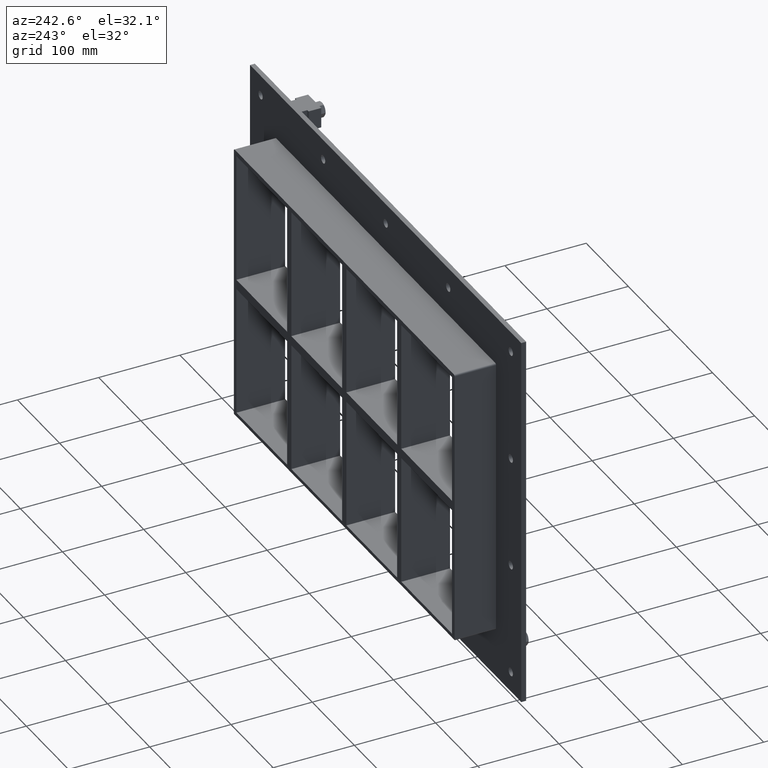
[diagram: clean part render]
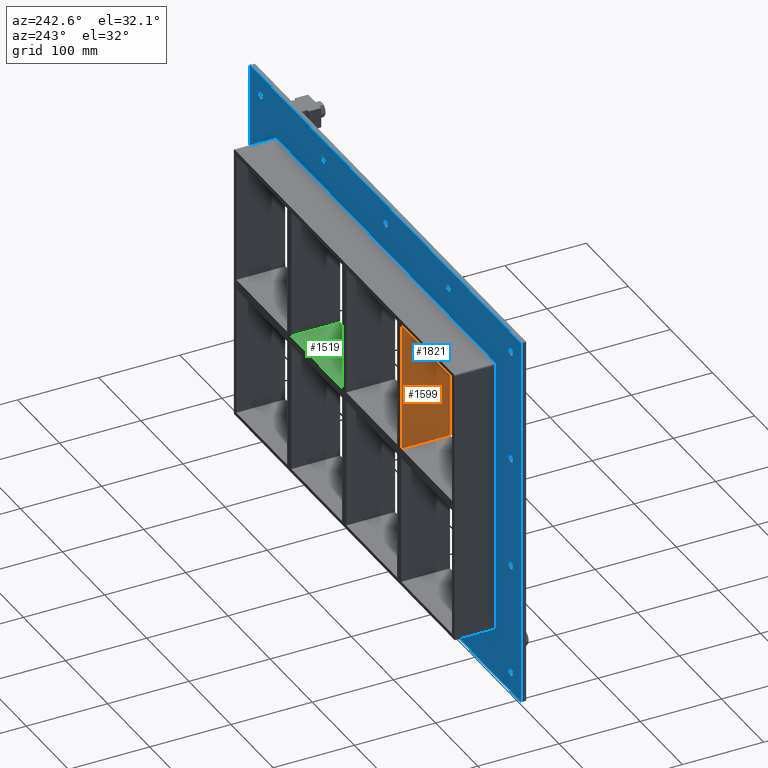
[diagram: same view with three faces highlighted in distinct colors, each labeled with its STEP entity id]
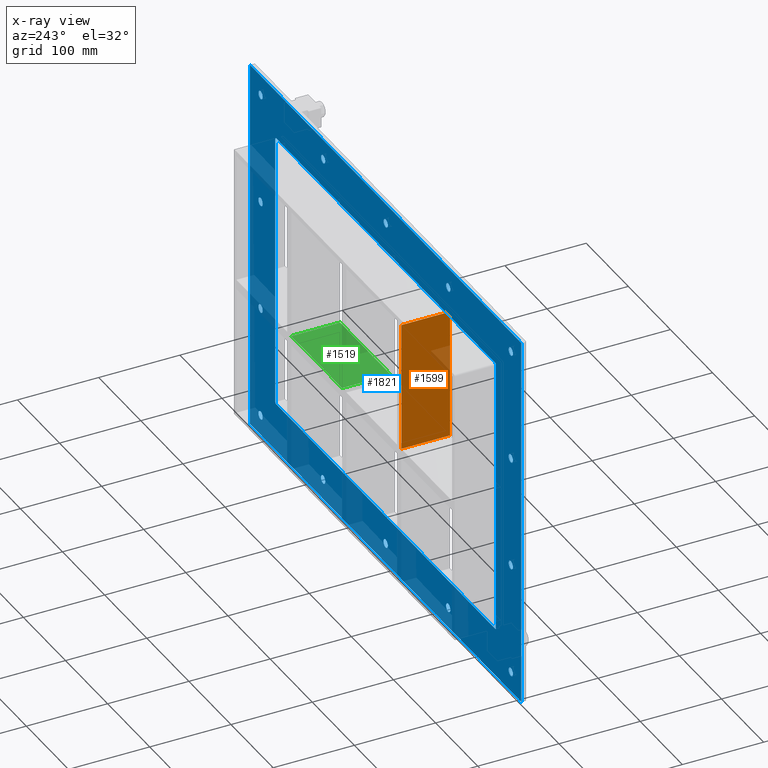
[diagram: x-ray of the same camera — body ghosted, the three highlighted faces saturated]
A machine part, auxiliary view with three faces highlighted in distinct colors.
The next image is the same camera in x-ray (body ghosted, the three faces saturated) — at least one of them is partly hidden behind the body in this view.
Their STEP definitions:

[orange] entity #1599 — the highlighted planar face has unit normal (-1, 0, 0).
#1062=CARTESIAN_POINT('',(-135.50000000000031,-3.0,165.5));
#1063=VERTEX_POINT('',#1062);
#1070=CARTESIAN_POINT('',(-135.50000000000031,-3.0,6.000000000000227));
#1071=VERTEX_POINT('',#1070);
#1072=CARTESIAN_POINT('',(-135.50000000000034,-3.0,6.000000000000227));
#1073=DIRECTION('',(0.0,0.0,1.0));
#1074=VECTOR('',#1073,159.4999999999998);
#1075=LINE('',#1072,#1074);
#1076=EDGE_CURVE('',#1071,#1063,#1075,.T.);
#1302=CARTESIAN_POINT('',(-135.50000000000031,57.0,6.000000000000227));
#1303=VERTEX_POINT('',#1302);
#1310=CARTESIAN_POINT('',(-135.50000000000031,57.0,165.5));
#1311=VERTEX_POINT('',#1310);
#1312=CARTESIAN_POINT('',(-135.50000000000034,57.0,6.000000000000227));
#1313=DIRECTION('',(0.0,0.0,1.0));
#1314=VECTOR('',#1313,159.4999999999998);
#1315=LINE('',#1312,#1314);
#1316=EDGE_CURVE('',#1303,#1311,#1315,.T.);
#1525=CARTESIAN_POINT('',(-135.50000000000034,57.0,6.000000000000227));
#1526=DIRECTION('',(0.0,-1.0,0.0));
#1527=VECTOR('',#1526,60.0);
#1528=LINE('',#1525,#1527);
#1529=EDGE_CURVE('',#1303,#1071,#1528,.T.);
#1583=CARTESIAN_POINT('',(-135.50000000000034,-3.0,-165.50000000000009));
#1584=DIRECTION('',(-1.0,0.0,0.0));
#1585=DIRECTION('',(0.0,0.0,1.0));
#1586=AXIS2_PLACEMENT_3D('',#1583,#1584,#1585);
#1587=PLANE('',#1586);
#1588=ORIENTED_EDGE('',*,*,#1529,.T.);
#1589=ORIENTED_EDGE('',*,*,#1076,.T.);
#1590=CARTESIAN_POINT('',(-135.50000000000028,57.000000000000007,165.50000000000006));
#1591=DIRECTION('',(0.0,-1.0,0.0));
#1592=VECTOR('',#1591,60.000000000000007);
#1593=LINE('',#1590,#1592);
#1594=EDGE_CURVE('',#1311,#1063,#1593,.T.);
#1595=ORIENTED_EDGE('',*,*,#1594,.F.);
#1596=ORIENTED_EDGE('',*,*,#1316,.F.);
#1597=EDGE_LOOP('',(#1588,#1589,#1595,#1596));
#1598=FACE_OUTER_BOUND('',#1597,.T.);
#1599=ADVANCED_FACE('',(#1598),#1587,.T.);

[blue] entity #1821 — the highlighted planar face has unit normal (0, 1, 0).
#73=CARTESIAN_POINT('',(-302.00000000000011,5.999999999999943,-206.5));
#74=VERTEX_POINT('',#73);
#75=CARTESIAN_POINT('',(-297.00000000000011,5.999999999999943,-206.5));
#76=DIRECTION('',(0.0,-1.0,0.0));
#77=DIRECTION('',(1.0,0.0,0.0));
#78=AXIS2_PLACEMENT_3D('',#75,#76,#77);
#79=CIRCLE('',#78,5.0);
#80=EDGE_CURVE('',#74,#74,#79,.T.);
#101=CARTESIAN_POINT('',(291.99999999999994,5.999999999999943,-68.799999999999955));
#102=VERTEX_POINT('',#101);
#103=CARTESIAN_POINT('',(296.99999999999994,5.999999999999943,-68.799999999999955));
#104=DIRECTION('',(0.0,-1.0,0.0));
#105=DIRECTION('',(1.0,0.0,0.0));
#106=AXIS2_PLACEMENT_3D('',#103,#104,#105);
#107=CIRCLE('',#106,5.0);
#108=EDGE_CURVE('',#102,#102,#107,.T.);
#129=CARTESIAN_POINT('',(-302.00000000000011,5.999999999999943,-68.799999999999955));
#130=VERTEX_POINT('',#129);
#131=CARTESIAN_POINT('',(-297.00000000000011,5.999999999999943,-68.799999999999955));
#132=DIRECTION('',(0.0,-1.0,0.0));
#133=DIRECTION('',(1.0,0.0,0.0));
#134=AXIS2_PLACEMENT_3D('',#131,#132,#133);
#135=CIRCLE('',#134,5.0);
#136=EDGE_CURVE('',#130,#130,#135,.T.);
#157=CARTESIAN_POINT('',(291.99999999999994,5.999999999999943,68.900000000000034));
#158=VERTEX_POINT('',#157);
#159=CARTESIAN_POINT('',(296.99999999999994,5.999999999999943,68.900000000000034));
#160=DIRECTION('',(0.0,-1.0,0.0));
#161=DIRECTION('',(1.0,0.0,0.0));
#162=AXIS2_PLACEMENT_3D('',#159,#160,#161);
#163=CIRCLE('',#162,5.0);
#164=EDGE_CURVE('',#158,#158,#163,.T.);
#185=CARTESIAN_POINT('',(-302.00000000000011,5.999999999999943,68.900000000000034));
#186=VERTEX_POINT('',#185);
#187=CARTESIAN_POINT('',(-297.00000000000011,5.999999999999943,68.900000000000034));
#188=DIRECTION('',(0.0,-1.0,0.0));
#189=DIRECTION('',(1.0,0.0,0.0));
#190=AXIS2_PLACEMENT_3D('',#187,#188,#189);
#191=CIRCLE('',#190,5.0);
#192=EDGE_CURVE('',#186,#186,#191,.T.);
#213=CARTESIAN_POINT('',(-153.50000000000011,5.999999999999943,206.60000000000002));
#214=VERTEX_POINT('',#213);
#215=CARTESIAN_POINT('',(-148.50000000000011,5.999999999999943,206.60000000000002));
#216=DIRECTION('',(0.0,-1.0,0.0));
#217=DIRECTION('',(1.0,0.0,0.0));
#218=AXIS2_PLACEMENT_3D('',#215,#216,#217);
#219=CIRCLE('',#218,5.0);
#220=EDGE_CURVE('',#214,#214,#219,.T.);
#241=CARTESIAN_POINT('',(-153.50000000000017,5.999999999999943,-206.5));
#242=VERTEX_POINT('',#241);
#243=CARTESIAN_POINT('',(-148.50000000000017,5.999999999999943,-206.5));
#244=DIRECTION('',(0.0,-1.0,0.0));
#245=DIRECTION('',(1.0,0.0,0.0));
#246=AXIS2_PLACEMENT_3D('',#243,#244,#245);
#247=CIRCLE('',#246,5.0);
#248=EDGE_CURVE('',#242,#242,#247,.T.);
#269=CARTESIAN_POINT('',(-5.000000000000107,5.999999999999943,206.60000000000002));
#270=VERTEX_POINT('',#269);
#271=CARTESIAN_POINT('',(-1.065814E-013,5.999999999999943,206.60000000000002));
#272=DIRECTION('',(0.0,-1.0,0.0));
#273=DIRECTION('',(1.0,0.0,0.0));
#274=AXIS2_PLACEMENT_3D('',#271,#272,#273);
#275=CIRCLE('',#274,5.0);
#276=EDGE_CURVE('',#270,#270,#275,.T.);
#297=CARTESIAN_POINT('',(-5.000000000000142,5.999999999999943,-206.5));
#298=VERTEX_POINT('',#297);
#299=CARTESIAN_POINT('',(-1.421085E-013,5.999999999999943,-206.5));
#300=DIRECTION('',(0.0,-1.0,0.0));
#301=DIRECTION('',(1.0,0.0,0.0));
#302=AXIS2_PLACEMENT_3D('',#299,#300,#301);
#303=CIRCLE('',#302,5.0);
#304=EDGE_CURVE('',#298,#298,#303,.T.);
#325=CARTESIAN_POINT('',(143.49999999999991,5.999999999999943,206.60000000000002));
#326=VERTEX_POINT('',#325);
#327=CARTESIAN_POINT('',(148.49999999999991,5.999999999999943,206.60000000000002));
#328=DIRECTION('',(0.0,-1.0,0.0));
#329=DIRECTION('',(1.0,0.0,0.0));
#330=AXIS2_PLACEMENT_3D('',#327,#328,#329);
#331=CIRCLE('',#330,5.0);
#332=EDGE_CURVE('',#326,#326,#331,.T.);
#353=CARTESIAN_POINT('',(143.49999999999989,5.999999999999943,-206.5));
#354=VERTEX_POINT('',#353);
#355=CARTESIAN_POINT('',(148.49999999999989,5.999999999999943,-206.5));
#356=DIRECTION('',(0.0,-1.0,0.0));
#357=DIRECTION('',(1.0,0.0,0.0));
#358=AXIS2_PLACEMENT_3D('',#355,#356,#357);
#359=CIRCLE('',#358,5.0);
#360=EDGE_CURVE('',#354,#354,#359,.T.);
#381=CARTESIAN_POINT('',(291.99999999999989,5.999999999999943,-206.5));
#382=VERTEX_POINT('',#381);
#383=CARTESIAN_POINT('',(296.99999999999989,5.999999999999943,-206.5));
#384=DIRECTION('',(0.0,-1.0,0.0));
#385=DIRECTION('',(1.0,0.0,0.0));
#386=AXIS2_PLACEMENT_3D('',#383,#384,#385);
#387=CIRCLE('',#386,5.0);
#388=EDGE_CURVE('',#382,#382,#387,.T.);
#409=CARTESIAN_POINT('',(-302.00000000000011,5.999999999999943,206.60000000000002));
#410=VERTEX_POINT('',#409);
#411=CARTESIAN_POINT('',(-297.00000000000011,5.999999999999943,206.60000000000002));
#412=DIRECTION('',(0.0,-1.0,0.0));
#413=DIRECTION('',(1.0,0.0,0.0));
#414=AXIS2_PLACEMENT_3D('',#411,#412,#413);
#415=CIRCLE('',#414,5.0);
#416=EDGE_CURVE('',#410,#410,#415,.T.);
#437=CARTESIAN_POINT('',(291.99999999999994,5.999999999999943,206.60000000000002));
#438=VERTEX_POINT('',#437);
#439=CARTESIAN_POINT('',(296.99999999999994,5.999999999999943,206.60000000000002));
#440=DIRECTION('',(0.0,-1.0,0.0));
#441=DIRECTION('',(1.0,0.0,0.0));
#442=AXIS2_PLACEMENT_3D('',#439,#440,#441);
#443=CIRCLE('',#442,5.0);
#444=EDGE_CURVE('',#438,#438,#443,.T.);
#1670=CARTESIAN_POINT('',(-4.621416E-014,6.000000000000001,0.0));
#1671=DIRECTION('',(0.0,1.0,0.0));
#1672=DIRECTION('',(0.0,0.0,1.0));
#1673=AXIS2_PLACEMENT_3D('',#1670,#1671,#1672);
#1674=PLANE('',#1673);
#1675=CARTESIAN_POINT('',(-322.0,6.000000000000001,231.5));
#1676=VERTEX_POINT('',#1675);
#1677=CARTESIAN_POINT('',(322.0,6.000000000000001,231.5));
#1678=VERTEX_POINT('',#1677);
#1679=CARTESIAN_POINT('',(-322.0,6.000000000000001,231.5));
#1680=DIRECTION('',(1.0,0.0,0.0));
#1681=VECTOR('',#1680,644.0);
#1682=LINE('',#1679,#1681);
#1683=EDGE_CURVE('',#1676,#1678,#1682,.T.);
#1684=ORIENTED_EDGE('',*,*,#1683,.T.);
#1685=CARTESIAN_POINT('',(322.0,6.000000000000001,-231.5));
#1686=VERTEX_POINT('',#1685);
#1687=CARTESIAN_POINT('',(321.99999999999994,6.000000000000001,231.5));
#1688=DIRECTION('',(0.0,0.0,-1.0));
#1689=VECTOR('',#1688,463.0);
#1690=LINE('',#1687,#1689);
#1691=EDGE_CURVE('',#1678,#1686,#1690,.T.);
#1692=ORIENTED_EDGE('',*,*,#1691,.T.);
#1693=CARTESIAN_POINT('',(-322.0,6.000000000000001,-231.5));
#1694=VERTEX_POINT('',#1693);
#1695=CARTESIAN_POINT('',(321.99999999999994,6.000000000000001,-231.5));
#1696=DIRECTION('',(-1.0,0.0,0.0));
#1697=VECTOR('',#1696,644.0);
#1698=LINE('',#1695,#1697);
#1699=EDGE_CURVE('',#1686,#1694,#1698,.T.);
#1700=ORIENTED_EDGE('',*,*,#1699,.T.);
#1701=CARTESIAN_POINT('',(-322.0,6.000000000000001,-231.5));
#1702=DIRECTION('',(0.0,0.0,1.0));
#1703=VECTOR('',#1702,463.0);
#1704=LINE('',#1701,#1703);
#1705=EDGE_CURVE('',#1694,#1676,#1704,.T.);
#1706=ORIENTED_EDGE('',*,*,#1705,.T.);
#1707=EDGE_LOOP('',(#1684,#1692,#1700,#1706));
#1708=FACE_OUTER_BOUND('',#1707,.T.);
#1709=ORIENTED_EDGE('',*,*,#80,.T.);
#1710=EDGE_LOOP('',(#1709));
#1711=FACE_BOUND('',#1710,.T.);
#1712=ORIENTED_EDGE('',*,*,#108,.T.);
#1713=EDGE_LOOP('',(#1712));
#1714=FACE_BOUND('',#1713,.T.);
#1715=ORIENTED_EDGE('',*,*,#136,.T.);
#1716=EDGE_LOOP('',(#1715));
#1717=FACE_BOUND('',#1716,.T.);
#1718=ORIENTED_EDGE('',*,*,#164,.T.);
#1719=EDGE_LOOP('',(#1718));
#1720=FACE_BOUND('',#1719,.T.);
#1721=ORIENTED_EDGE('',*,*,#192,.T.);
#1722=EDGE_LOOP('',(#1721));
#1723=FACE_BOUND('',#1722,.T.);
#1724=ORIENTED_EDGE('',*,*,#220,.T.);
#1725=EDGE_LOOP('',(#1724));
#1726=FACE_BOUND('',#1725,.T.);
#1727=ORIENTED_EDGE('',*,*,#248,.T.);
#1728=EDGE_LOOP('',(#1727));
#1729=FACE_BOUND('',#1728,.T.);
#1730=ORIENTED_EDGE('',*,*,#276,.T.);
#1731=EDGE_LOOP('',(#1730));
#1732=FACE_BOUND('',#1731,.T.);
#1733=ORIENTED_EDGE('',*,*,#304,.T.);
#1734=EDGE_LOOP('',(#1733));
#1735=FACE_BOUND('',#1734,.T.);
#1736=ORIENTED_EDGE('',*,*,#332,.T.);
#1737=EDGE_LOOP('',(#1736));
#1738=FACE_BOUND('',#1737,.T.);
#1739=ORIENTED_EDGE('',*,*,#360,.T.);
#1740=EDGE_LOOP('',(#1739));
#1741=FACE_BOUND('',#1740,.T.);
#1742=ORIENTED_EDGE('',*,*,#388,.T.);
#1743=EDGE_LOOP('',(#1742));
#1744=FACE_BOUND('',#1743,.T.);
#1745=ORIENTED_EDGE('',*,*,#416,.T.);
#1746=EDGE_LOOP('',(#1745));
#1747=FACE_BOUND('',#1746,.T.);
#1748=ORIENTED_EDGE('',*,*,#444,.T.);
#1749=EDGE_LOOP('',(#1748));
#1750=FACE_BOUND('',#1749,.T.);
#1751=CARTESIAN_POINT('',(-262.0,6.000000000000001,169.50000000000003));
#1752=VERTEX_POINT('',#1751);
#1753=CARTESIAN_POINT('',(-260.0,6.000000000000001,171.50000000000003));
#1754=VERTEX_POINT('',#1753);
#1755=CARTESIAN_POINT('',(-260.0,6.000000000000001,169.50000000000003));
#1756=DIRECTION('',(0.0,1.0,0.0));
#1757=DIRECTION('',(-0.707106781186548,0.0,0.707106781186548));
#1758=AXIS2_PLACEMENT_3D('',#1755,#1756,#1757);
#1759=CIRCLE('',#1758,2.0);
#1760=EDGE_CURVE('',#1752,#1754,#1759,.T.);
#1761=ORIENTED_EDGE('',*,*,#1760,.F.);
#1762=CARTESIAN_POINT('',(-262.0,6.000000000000001,-169.50000000000003));
#1763=VERTEX_POINT('',#1762);
#1764=CARTESIAN_POINT('',(-262.0,6.000000000000001,-169.50000000000003));
#1765=DIRECTION('',(0.0,0.0,1.0));
#1766=VECTOR('',#1765,339.00000000000011);
#1767=LINE('',#1764,#1766);
#1768=EDGE_CURVE('',#1763,#1752,#1767,.T.);
#1769=ORIENTED_EDGE('',*,*,#1768,.F.);
#1770=CARTESIAN_POINT('',(-260.0,6.000000000000001,-171.50000000000003));
#1771=VERTEX_POINT('',#1770);
#1772=CARTESIAN_POINT('',(-260.0,6.000000000000001,-169.50000000000003));
#1773=DIRECTION('',(0.0,1.0,0.0));
#1774=DIRECTION('',(-0.707106781186548,0.0,-0.707106781186548));
#1775=AXIS2_PLACEMENT_3D('',#1772,#1773,#1774);
#1776=CIRCLE('',#1775,2.0);
#1777=EDGE_CURVE('',#1771,#1763,#1776,.T.);
#1778=ORIENTED_EDGE('',*,*,#1777,.F.);
#1779=CARTESIAN_POINT('',(260.0,6.000000000000001,-171.50000000000003));
#1780=VERTEX_POINT('',#1779);
#1781=CARTESIAN_POINT('',(260.0,6.000000000000001,-171.50000000000003));
#1782=DIRECTION('',(-1.0,0.0,0.0));
#1783=VECTOR('',#1782,520.0);
#1784=LINE('',#1781,#1783);
#1785=EDGE_CURVE('',#1780,#1771,#1784,.T.);
#1786=ORIENTED_EDGE('',*,*,#1785,.F.);
#1787=CARTESIAN_POINT('',(262.0,6.000000000000001,-169.50000000000003));
#1788=VERTEX_POINT('',#1787);
#1789=CARTESIAN_POINT('',(260.0,6.000000000000001,-169.50000000000003));
#1790=DIRECTION('',(0.0,1.0,0.0));
#1791=DIRECTION('',(0.707106781186548,0.0,-0.707106781186548));
#1792=AXIS2_PLACEMENT_3D('',#1789,#1790,#1791);
#1793=CIRCLE('',#1792,2.0);
#1794=EDGE_CURVE('',#1788,#1780,#1793,.T.);
#1795=ORIENTED_EDGE('',*,*,#1794,.F.);
#1796=CARTESIAN_POINT('',(262.0,6.000000000000001,169.50000000000003));
#1797=VERTEX_POINT('',#1796);
#1798=CARTESIAN_POINT('',(262.0,6.000000000000001,169.50000000000003));
#1799=DIRECTION('',(0.0,0.0,-1.0));
#1800=VECTOR('',#1799,339.00000000000011);
#1801=LINE('',#1798,#1800);
#1802=EDGE_CURVE('',#1797,#1788,#1801,.T.);
#1803=ORIENTED_EDGE('',*,*,#1802,.F.);
#1804=CARTESIAN_POINT('',(260.0,6.000000000000001,171.50000000000003));
#1805=VERTEX_POINT('',#1804);
#1806=CARTESIAN_POINT('',(260.0,6.000000000000001,169.50000000000003));
#1807=DIRECTION('',(0.0,1.0,0.0));
#1808=DIRECTION('',(0.707106781186548,0.0,0.707106781186548));
#1809=AXIS2_PLACEMENT_3D('',#1806,#1807,#1808);
#1810=CIRCLE('',#1809,2.0);
#1811=EDGE_CURVE('',#1805,#1797,#1810,.T.);
#1812=ORIENTED_EDGE('',*,*,#1811,.F.);
#1813=CARTESIAN_POINT('',(-260.0,6.000000000000001,171.50000000000003));
#1814=DIRECTION('',(1.0,0.0,0.0));
#1815=VECTOR('',#1814,520.0);
#1816=LINE('',#1813,#1815);
#1817=EDGE_CURVE('',#1754,#1805,#1816,.T.);
#1818=ORIENTED_EDGE('',*,*,#1817,.F.);
#1819=EDGE_LOOP('',(#1761,#1769,#1778,#1786,#1795,#1803,#1812,#1818));
#1820=FACE_BOUND('',#1819,.T.);
#1821=ADVANCED_FACE('',(#1708,#1711,#1714,#1717,#1720,#1723,#1726,#1729,#1732,#1735,#1738,#1741,#1744,#1747,#1750,#1820),#1674,.T.);

[green] entity #1519 — the highlighted planar face has unit normal (0, 0, 1).
#465=CARTESIAN_POINT('',(125.4999999999997,-3.0,6.000000000000227));
#466=VERTEX_POINT('',#465);
#467=CARTESIAN_POINT('',(125.4999999999997,57.0,6.000000000000227));
#468=VERTEX_POINT('',#467);
#469=CARTESIAN_POINT('',(125.49999999999969,-3.0,6.000000000000236));
#470=DIRECTION('',(0.0,1.0,0.0));
#471=VECTOR('',#470,60.0);
#472=LINE('',#469,#471);
#473=EDGE_CURVE('',#466,#468,#472,.T.);
#705=CARTESIAN_POINT('',(5.000000000007283,57.0,6.000000000000227));
#706=VERTEX_POINT('',#705);
#707=CARTESIAN_POINT('',(5.000000000007283,-3.0,6.000000000000227));
#708=VERTEX_POINT('',#707);
#709=CARTESIAN_POINT('',(5.000000000007283,57.0,6.000000000000227));
#710=DIRECTION('',(0.0,-1.0,0.0));
#711=VECTOR('',#710,60.0);
#712=LINE('',#709,#711);
#713=EDGE_CURVE('',#706,#708,#712,.T.);
#950=CARTESIAN_POINT('',(5.000000000007304,-3.0,6.000000000000227));
#951=DIRECTION('',(1.0,0.0,0.0));
#952=VECTOR('',#951,120.49999999999238);
#953=LINE('',#950,#952);
#954=EDGE_CURVE('',#708,#466,#953,.T.);
#1281=CARTESIAN_POINT('',(5.000000000007304,57.0,6.000000000000227));
#1282=DIRECTION('',(1.0,0.0,0.0));
#1283=VECTOR('',#1282,120.49999999999238);
#1284=LINE('',#1281,#1283);
#1285=EDGE_CURVE('',#706,#468,#1284,.T.);
#1508=CARTESIAN_POINT('',(-255.99999999999866,-3.0,6.000000000000227));
#1509=DIRECTION('',(0.0,0.0,1.0));
#1510=DIRECTION('',(1.0,0.0,0.0));
#1511=AXIS2_PLACEMENT_3D('',#1508,#1509,#1510);
#1512=PLANE('',#1511);
#1513=ORIENTED_EDGE('',*,*,#473,.T.);
#1514=ORIENTED_EDGE('',*,*,#1285,.F.);
#1515=ORIENTED_EDGE('',*,*,#713,.T.);
#1516=ORIENTED_EDGE('',*,*,#954,.T.);
#1517=EDGE_LOOP('',(#1513,#1514,#1515,#1516));
#1518=FACE_OUTER_BOUND('',#1517,.T.);
#1519=ADVANCED_FACE('',(#1518),#1512,.T.);